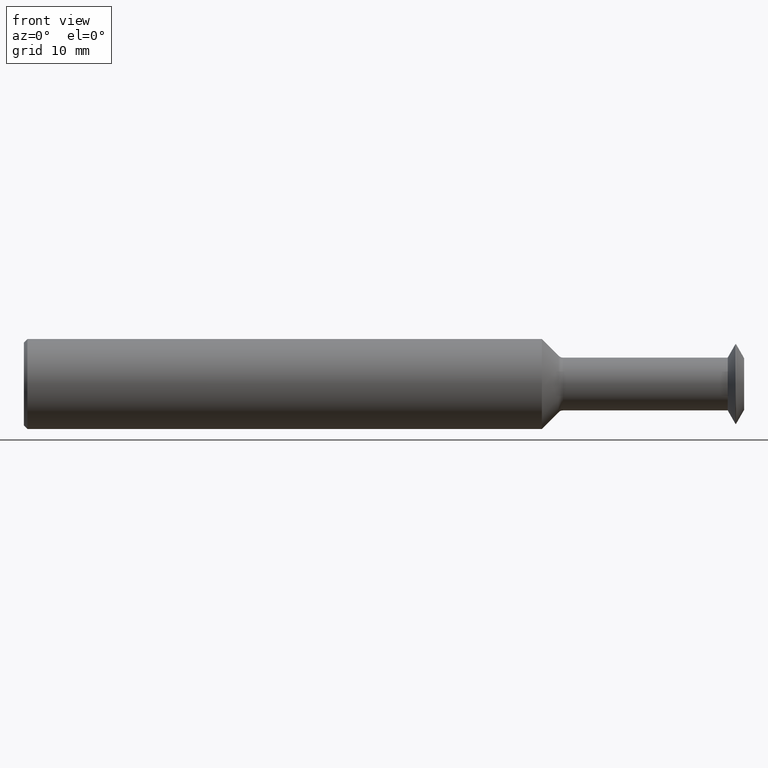
[diagram: clean part render]
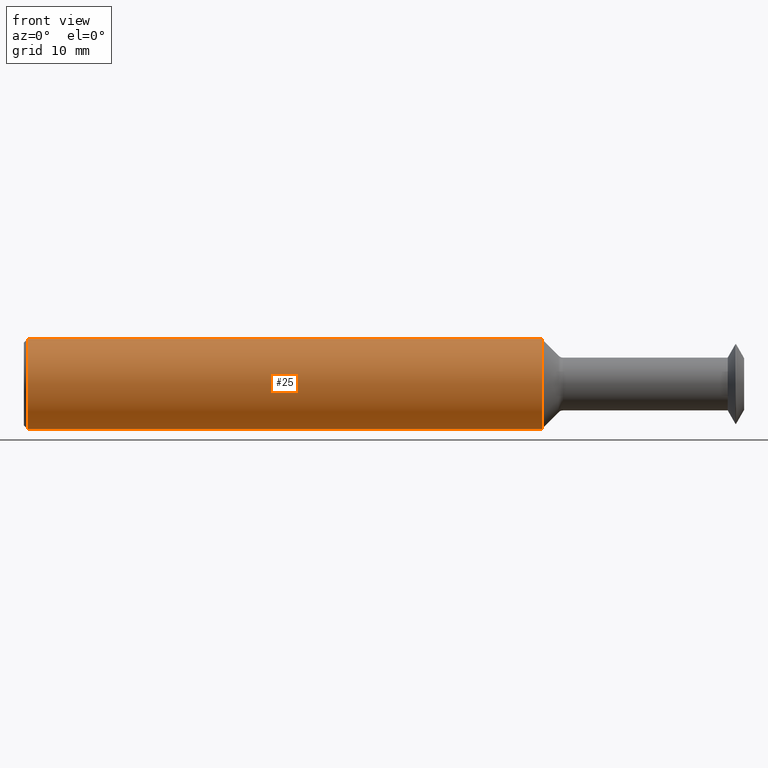
[diagram: same view with one face highlighted and labeled with its STEP entity id]
A machine part, front view. The second image highlights one B-rep face of the part: STEP entity #25.
In plain terms, the highlighted cylindrical surface (partial cylindrical patch) has radius 4.7587 mm, axis along (-1, -0, -0).
Its self-contained STEP definition (entity closure, byte-faithful):
#15 = CARTESIAN_POINT ( 'NONE',  ( 0.01499999999999953280, 0.0000000000000000000, 0.1873499999999999888 ) ) ;
#23 = DIRECTION ( 'NONE',  ( -1.000000000000000000, -0.0000000000000000000, -0.0000000000000000000 ) ) ;
#25 = ADVANCED_FACE ( 'NONE', ( #27 ), #196, .T. ) ;
#27 = FACE_OUTER_BOUND ( 'NONE', #369, .T. ) ;
#46 = VERTEX_POINT ( 'NONE', #334 ) ;
#51 = VECTOR ( 'NONE', #23, 39.37007874015748143 ) ;
#85 = ORIENTED_EDGE ( 'NONE', *, *, #187, .T. ) ;
#107 = DIRECTION ( 'NONE',  ( 0.0000000000000000000, 0.0000000000000000000, 1.000000000000000000 ) ) ;
#118 = LINE ( 'NONE', #338, #51 ) ;
#128 = DIRECTION ( 'NONE',  ( 0.0000000000000000000, 0.0000000000000000000, 1.000000000000000000 ) ) ;
#132 = VERTEX_POINT ( 'NONE', #172 ) ;
#136 = DIRECTION ( 'NONE',  ( -1.000000000000000000, -0.0000000000000000000, -0.0000000000000000000 ) ) ;
#139 = VERTEX_POINT ( 'NONE', #217 ) ;
#156 = VERTEX_POINT ( 'NONE', #15 ) ;
#172 = CARTESIAN_POINT ( 'NONE',  ( 0.01499999999999953280, 2.294375778202566330E-17, -0.1873499999999999888 ) ) ;
#187 = EDGE_CURVE ( 'NONE', #46, #139, #288, .T. ) ;
#188 = AXIS2_PLACEMENT_3D ( 'NONE', #405, #136, #128 ) ;
#196 = CYLINDRICAL_SURFACE ( 'NONE', #188, 0.1873499999999999888 ) ;
#205 = ORIENTED_EDGE ( 'NONE', *, *, #247, .T. ) ;
#208 = LINE ( 'NONE', #268, #342 ) ;
#217 = CARTESIAN_POINT ( 'NONE',  ( 2.157541972616871639, 0.0000000000000000000, 0.1873499999999999888 ) ) ;
#233 = DIRECTION ( 'NONE',  ( 0.0000000000000000000, 0.0000000000000000000, -1.000000000000000000 ) ) ;
#242 = DIRECTION ( 'NONE',  ( -1.000000000000000000, -0.0000000000000000000, -0.0000000000000000000 ) ) ;
#247 = EDGE_CURVE ( 'NONE', #156, #132, #329, .T. ) ;
#253 = EDGE_CURVE ( 'NONE', #139, #156, #118, .T. ) ;
#268 = CARTESIAN_POINT ( 'NONE',  ( 0.0000000000000000000, 2.294375778202566330E-17, -0.1873499999999999888 ) ) ;
#274 = AXIS2_PLACEMENT_3D ( 'NONE', #413, #378, #233 ) ;
#288 = CIRCLE ( 'NONE', #293, 0.1873499999999999888 ) ;
#293 = AXIS2_PLACEMENT_3D ( 'NONE', #471, #242, #107 ) ;
#329 = CIRCLE ( 'NONE', #274, 0.1873499999999999888 ) ;
#334 = CARTESIAN_POINT ( 'NONE',  ( 2.157541972616871639, 2.294375778202565714E-17, -0.1873499999999999888 ) ) ;
#338 = CARTESIAN_POINT ( 'NONE',  ( 0.0000000000000000000, 0.0000000000000000000, 0.1873499999999999888 ) ) ;
#342 = VECTOR ( 'NONE', #434, 39.37007874015748143 ) ;
#369 = EDGE_LOOP ( 'NONE', ( #414, #85, #404, #205 ) ) ;
#378 = DIRECTION ( 'NONE',  ( 1.000000000000000000, 0.0000000000000000000, 0.0000000000000000000 ) ) ;
#404 = ORIENTED_EDGE ( 'NONE', *, *, #253, .T. ) ;
#405 = CARTESIAN_POINT ( 'NONE',  ( 0.0000000000000000000, 0.0000000000000000000, 0.0000000000000000000 ) ) ;
#413 = CARTESIAN_POINT ( 'NONE',  ( 0.01499999999999953280, 0.0000000000000000000, 0.0000000000000000000 ) ) ;
#414 = ORIENTED_EDGE ( 'NONE', *, *, #497, .F. ) ;
#434 = DIRECTION ( 'NONE',  ( -1.000000000000000000, -0.0000000000000000000, -0.0000000000000000000 ) ) ;
#471 = CARTESIAN_POINT ( 'NONE',  ( 2.157541972616871639, 0.0000000000000000000, 0.0000000000000000000 ) ) ;
#497 = EDGE_CURVE ( 'NONE', #46, #132, #208, .T. ) ;